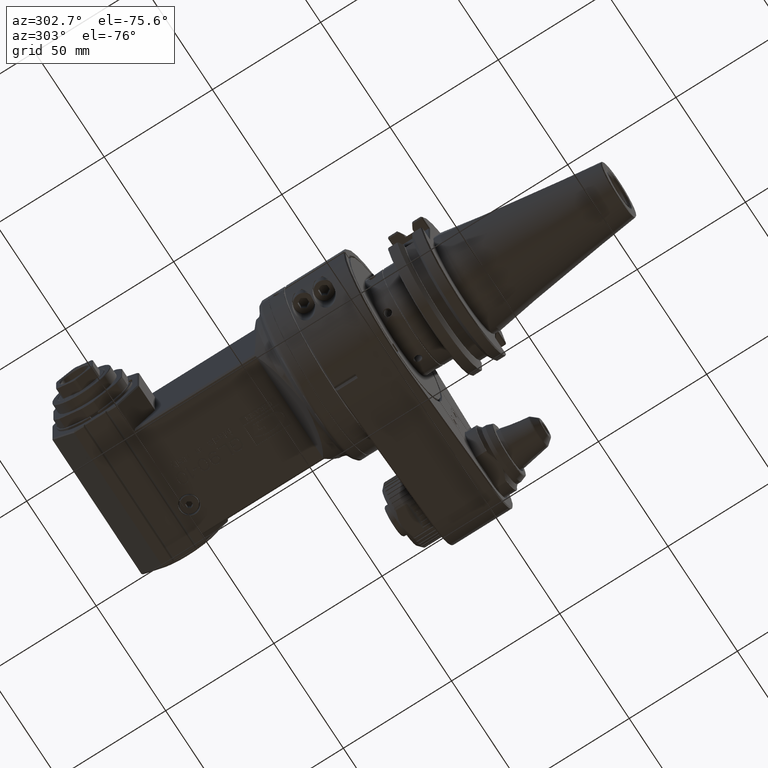
[diagram: clean part render]
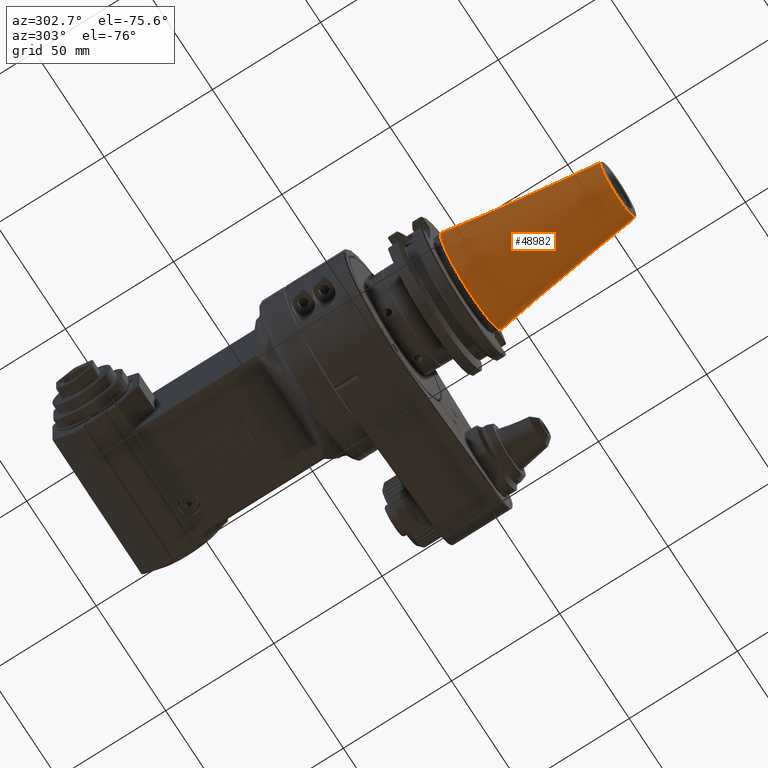
[diagram: same view with one face highlighted and labeled with its STEP entity id]
A machine part, auxiliary view. The second image highlights one B-rep face of the part: STEP entity #48982.
In plain terms, the highlighted conical surface has half-angle 8 deg.
Its self-contained STEP definition (entity closure, byte-faithful):
#2854=CONICAL_SURFACE('',#52512,17.44874874084,0.139626340159546);
#5274=FACE_OUTER_BOUND('',#8176,.T.);
#8176=EDGE_LOOP('',(#42748,#42749,#42750,#42751,#42752,#42753));
#13200=LINE('',#79584,#18282);
#18282=VECTOR('',#63407,17.44874874084);
#20058=CIRCLE('',#52510,22.225);
#20059=CIRCLE('',#52511,22.225);
#20060=CIRCLE('',#52513,12.67249754859);
#20061=CIRCLE('',#52514,12.67249754859);
#24230=VERTEX_POINT('',#79577);
#24231=VERTEX_POINT('',#79578);
#24232=VERTEX_POINT('',#79583);
#24233=VERTEX_POINT('',#79585);
#30619=EDGE_CURVE('',#24230,#24231,#20058,.T.);
#30620=EDGE_CURVE('',#24231,#24230,#20059,.T.);
#30622=EDGE_CURVE('',#24231,#24232,#13200,.T.);
#30623=EDGE_CURVE('',#24233,#24232,#20060,.T.);
#30624=EDGE_CURVE('',#24232,#24233,#20061,.T.);
#42748=ORIENTED_EDGE('',*,*,#30619,.F.);
#42749=ORIENTED_EDGE('',*,*,#30620,.F.);
#42750=ORIENTED_EDGE('',*,*,#30622,.T.);
#42751=ORIENTED_EDGE('',*,*,#30623,.F.);
#42752=ORIENTED_EDGE('',*,*,#30624,.F.);
#42753=ORIENTED_EDGE('',*,*,#30622,.F.);
#48982=ADVANCED_FACE('',(#5274),#2854,.T.);
#52510=AXIS2_PLACEMENT_3D('',#79579,#63400,#63401);
#52511=AXIS2_PLACEMENT_3D('',#79580,#63402,#63403);
#52512=AXIS2_PLACEMENT_3D('',#79582,#63405,#63406);
#52513=AXIS2_PLACEMENT_3D('',#79586,#63408,#63409);
#52514=AXIS2_PLACEMENT_3D('',#79587,#63410,#63411);
#63400=DIRECTION('center_axis',(0.,1.,0.));
#63401=DIRECTION('ref_axis',(-1.,0.,0.));
#63402=DIRECTION('center_axis',(0.,1.,0.));
#63403=DIRECTION('ref_axis',(-1.,0.,0.));
#63405=DIRECTION('center_axis',(0.,1.,0.));
#63406=DIRECTION('ref_axis',(1.,0.,0.));
#63407=DIRECTION('',(0.139173100960065,-0.99026806874157,-1.70437892618156E-17));
#63408=DIRECTION('center_axis',(0.,-1.,0.));
#63409=DIRECTION('ref_axis',(1.,0.,0.));
#63410=DIRECTION('center_axis',(0.,-1.,0.));
#63411=DIRECTION('ref_axis',(1.,0.,0.));
#79577=CARTESIAN_POINT('',(22.225,-42.1,0.));
#79578=CARTESIAN_POINT('',(-22.2250000000032,-42.1000000000004,2.72177751110539E-15));
#79579=CARTESIAN_POINT('Origin',(4.2403852604E-16,-42.1,0.));
#79580=CARTESIAN_POINT('Origin',(4.2403852604E-16,-42.1,0.));
#79582=CARTESIAN_POINT('Origin',(4.2403852604E-16,-76.08479359595,0.));
#79583=CARTESIAN_POINT('',(-12.67249754859,-110.069586715738,0.));
#79584=CARTESIAN_POINT('',(-17.44874874084,-76.08479359595,2.13685542945961E-15));
#79585=CARTESIAN_POINT('',(-12.6717219701769,-110.069586715738,0.140201389274264));
#79586=CARTESIAN_POINT('Origin',(4.2403852604E-16,-110.069586715738,0.));
#79587=CARTESIAN_POINT('Origin',(4.2403852604E-16,-110.069586715738,0.));